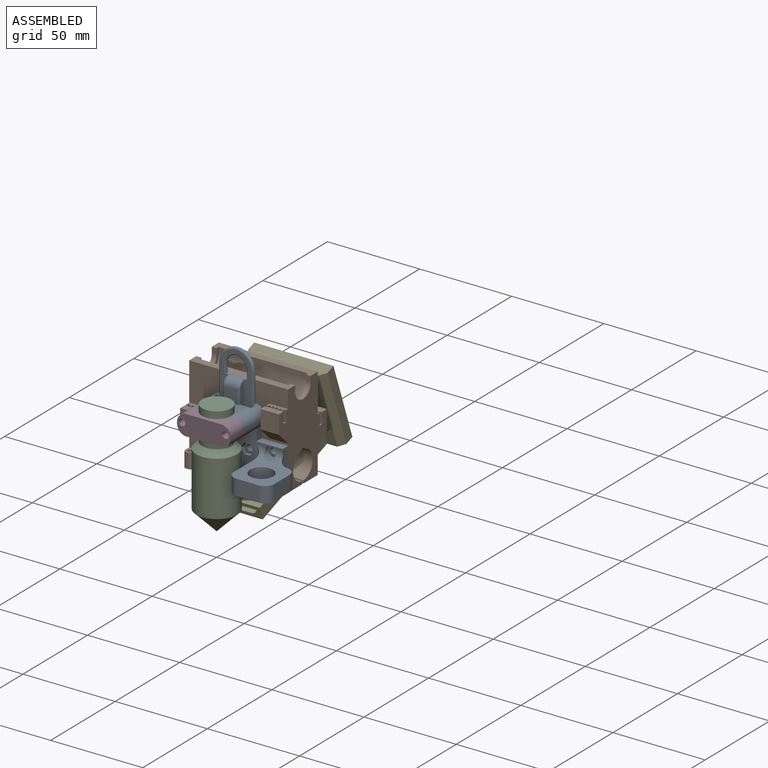
[diagram: assembled view]
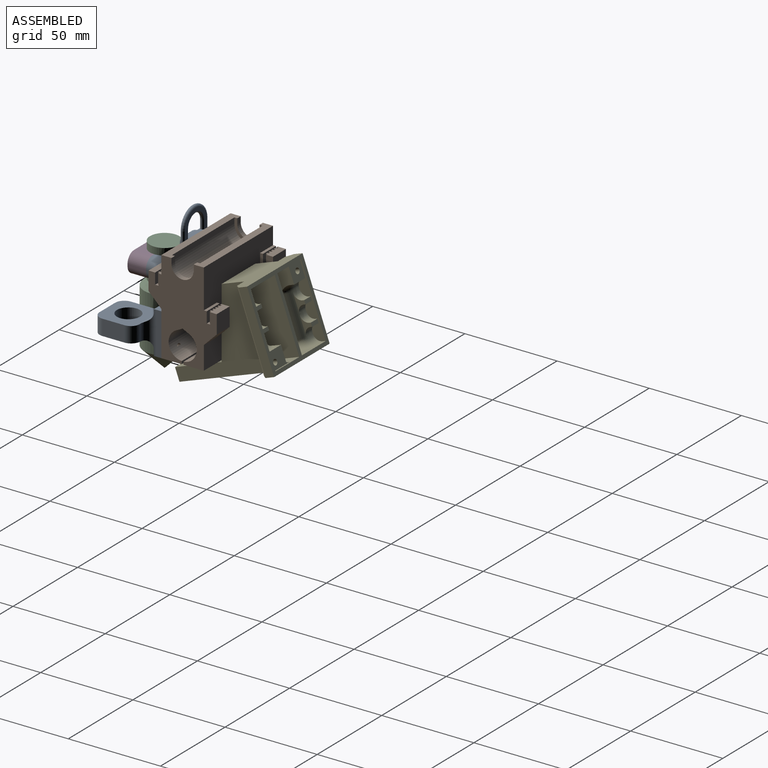
[diagram: assembled view, second angle]
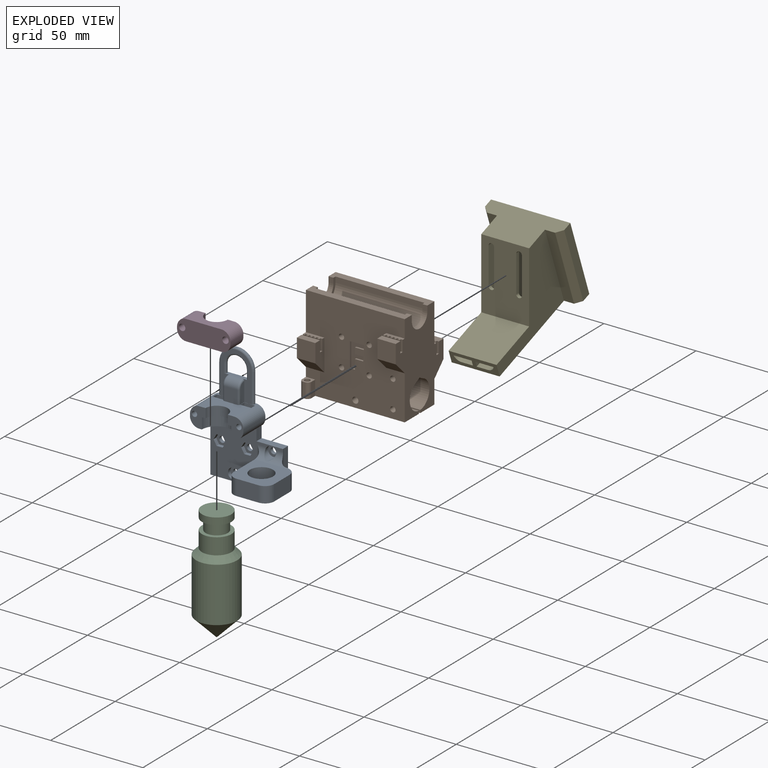
[diagram: exploded view]
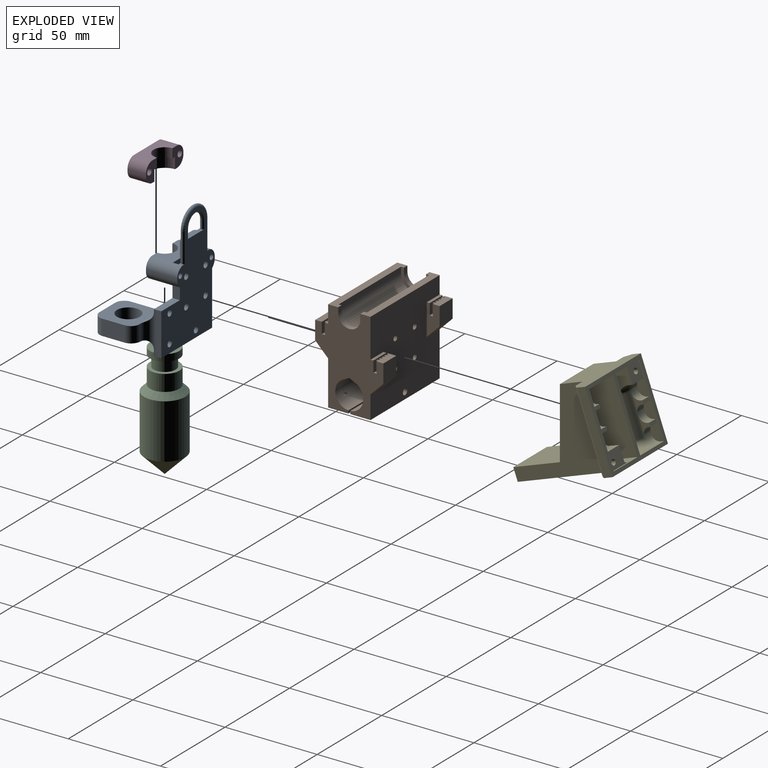
[diagram: exploded view, second angle]
ASSEMBLY  parts=5 mates=4
PART A: 114 faces, bbox 51.3x65.5x30 mm
  f0: plane 19x15.9mm, normal (0,1,0), area 162.2mm2, adj f3,f4,f9,f10,f13,f70,f72,f74
  f1: plane 1.71x0.13mm, normal (0,0,-1), area 0.1mm2, adj f17,f79
  f2: plane 1.71x0.13mm, normal (0,0,-1), area 0.1mm2, adj f20,f70
  f3: cylinder r=5mm len=17mm, axis (0,0,-1), area 131.1mm2, adj f0,f12,f13,f23,f78,f79,f80,f91
  f4: cylinder r=5mm len=17mm, axis (0,0,-1), area 131.1mm2, adj f0,f9,f12,f24,f72,f73,f74,f89
  f5: plane 39.4x29.24mm, normal (0,0,1), area 684.8mm2, adj f6,f11,f14,f27,f28,f30,f31,f39
  f6: plane 29.24x4mm, normal (-1,0,0), area 117mm2, adj f5,f12,f28,f30
  f7: cylinder r=1.68mm len=3.35mm, axis (0,0,1), area 21mm2, adj f12,f21
  f8: cylinder r=1.68mm len=3.35mm, axis (0,0,1), area 21mm2, adj f12,f18
  f9: plane 11x8.5mm, normal (0,0,1), area 64.2mm2, adj f0,f4,f10,f14,f15,f16,f24,f26
  f10: cylinder r=6mm len=12mm, axis (0,1,0), area 94.2mm2, adj f0,f9,f13,f16
  f11: plane 6.24x4mm, normal (1,0,0), area 25mm2, adj f5,f12,f27,f31
  f12: plane 63.74x41.3mm, normal (0,0,-1), area 1518.2mm2, adj f3,f4,f6,f7,f8,f11,f23,f24
  f13: plane 11x8.5mm, normal (0,0,1), area 64.2mm2, adj f0,f3,f10,f14,f15,f16,f23,f25
  f14: plane 19x13mm, normal (0,-1,0), area 146.5mm2, adj f5,f9,f13,f15,f27,f28
  f15: cylinder r=8mm len=16mm, axis (0,-1,0), area 150.8mm2, adj f9,f13,f14,f16
  f16: plane 16x8mm, normal (0,-1,0), area 44mm2, adj f9,f10,f13,f15
  f17: cylinder r=3mm len=6mm, axis (0,0,1), area 10mm2, adj f1,f18,f19,f76,f77,f78,f79
  f18: plane 6x6mm, normal (0,0,1), area 19.5mm2, adj f8,f17
  f19: plane 1.71x0.13mm, normal (0,0,-1), area 0.1mm2, adj f17,f76
  f20: cylinder r=3mm len=6mm, axis (0,0,1), area 10mm2, adj f2,f21,f22,f70,f71,f72,f73
  f21: plane 6x6mm, normal (0,0,1), area 19.5mm2, adj f7,f20
  f22: plane 1.71x0.13mm, normal (0,0,-1), area 0.1mm2, adj f20,f73
  f23: plane 17x1mm, normal (1,0,0), area 17mm2, adj f3,f12,f13,f27
  f24: plane 17x1mm, normal (-1,0,0), area 17mm2, adj f4,f9,f12,f28
  f25: cylinder r=1.45mm len=17mm, axis (0,0,1), area 154.9mm2, adj f12,f13
  f26: cylinder r=1.45mm len=17mm, axis (0,0,1), area 154.9mm2, adj f9,f12
  f27: cylinder r=5mm len=17mm, axis (0,0,-1), area 120.6mm2, adj f5,f11,f12,f13,f14,f23
  f28: cylinder r=5mm len=17mm, axis (0,0,1), area 120.6mm2, adj f5,f6,f9,f12,f14,f24
  f29: plane 23x3mm, normal (1,0,0), area 69mm2, adj f12,f30,f31,f39
  f30: plane 39.4x4mm, normal (0,-1,0), area 157.2mm2, adj f5,f6,f12,f29,f39
  f31: plane 14.4x4mm, normal (0,1,0), area 57.2mm2, adj f5,f11,f12,f29,f39
  f32: plane 19x10.5mm, normal (-1,0,0), area 163.4mm2, adj f35,f36,f37,f67,f68,f69
  f33: plane 12x8.5mm, normal (0,0,1), area 102mm2, adj f35,f36,f37,f38
  f34: plane 12x8.5mm, normal (1,0,0), area 102mm2, adj f35,f36,f38,f40
  f35: plane 22x21mm, normal (0,-1,0), area 326.1mm2, adj f32,f33,f34,f37,f38,f40,f41,f68
  f36: plane 22x21mm, normal (0,1,0), area 326.1mm2, adj f32,f33,f34,f37,f38,f40,f41,f67
  f37: cylinder r=5mm len=8.5mm, axis (0,1,0), area 66.8mm2, adj f32,f33,f35,f36
  f38: cylinder r=5mm len=8.5mm, axis (0,-1,0), area 66.8mm2, adj f33,f34,f35,f36
  f39: cylinder r=5mm len=23mm, axis (0,1,0), area 94mm2, adj f5,f29,f30,f31,f40,f67,f68
  f40: cylinder r=5mm len=8.7mm, axis (0,1,0), area 67.1mm2, adj f34,f35,f36,f39,f67,f68
  f41: cylinder r=6.25mm len=12.5mm, axis (0,1,0), area 333.8mm2, adj f35,f36
  f42: cylinder r=3mm len=6mm, axis (0,0,1), area 57.4mm2, adj f5,f43,f67
  f43: plane 6x6mm, normal (0,0,1), area 19.5mm2, adj f42,f66
  f44: plane 2.86x2mm, normal (-0.87,0.5,0), area 6.6mm2, adj f5,f45,f49,f50
  f45: plane 2.86x2mm, normal (-0.87,-0.5,0), area 6.6mm2, adj f5,f44,f46,f50
  f46: plane 3.3x2mm, normal (0,-1,0), area 6.6mm2, adj f5,f45,f47,f50
  f47: plane 2.86x2mm, normal (0.87,-0.5,0), area 6.6mm2, adj f5,f46,f48,f50
  f48: plane 2.86x2mm, normal (0.87,0.5,0), area 6.6mm2, adj f5,f47,f49,f50
  f49: plane 3.3x2mm, normal (0,1,0), area 6.6mm2, adj f5,f44,f48,f50
  f50: plane 6.6x5.72mm, normal (0,0,1), area 19.5mm2, adj f44,f45,f46,f47,f48,f49,f65
  f51: cylinder r=3mm len=6mm, axis (0,0,1), area 37.7mm2, adj f5,f52
  f52: plane 6x6mm, normal (0,0,1), area 19.5mm2, adj f51,f64
  f53: plane 2.86x2mm, normal (-0.87,-0.5,0), area 6.6mm2, adj f5,f54,f58,f59
  f54: plane 3.3x2mm, normal (0,-1,0), area 6.6mm2, adj f5,f53,f55,f59
  f55: plane 2.86x2mm, normal (0.87,-0.5,0), area 6.6mm2, adj f5,f54,f56,f59
  f56: plane 2.86x2mm, normal (0.87,0.5,0), area 6.6mm2, adj f5,f55,f57,f59
  f57: plane 3.3x2mm, normal (0,1,0), area 6.6mm2, adj f5,f56,f58,f59
  f58: plane 2.86x2mm, normal (-0.87,0.5,0), area 6.6mm2, adj f5,f53,f57,f59
  f59: plane 6.6x5.72mm, normal (0,0,1), area 19.5mm2, adj f53,f54,f55,f56,f57,f58,f63
  f60: cylinder r=3mm len=6mm, axis (0,0,1), area 54.6mm2, adj f5,f61,f68
  f61: plane 6x6mm, normal (0,0,1), area 19.5mm2, adj f60,f62
  f62: cylinder r=1.68mm len=3.35mm, axis (0,0,1), area 21mm2, adj f12,f61
  f63: cylinder r=1.68mm len=3.35mm, axis (0,0,1), area 21mm2, adj f12,f59
  f64: cylinder r=1.68mm len=3.35mm, axis (0,0,1), area 21mm2, adj f12,f52
  f65: cylinder r=1.68mm len=3.35mm, axis (0,0,1), area 21mm2, adj f12,f50
  f66: cylinder r=1.68mm len=3.35mm, axis (0,0,1), area 21mm2, adj f12,f43
  f67: cylinder r=5mm len=22mm, axis (-1,0,0), area 80.7mm2, adj f5,f32,f36,f39,f40,f42,f69
  f68: cylinder r=5mm len=22mm, axis (1,0,0), area 83mm2, adj f5,f32,f35,f39,f40,f60,f69
  f69: cylinder r=2mm len=18.5mm, axis (0,-1,0), area 44.1mm2, adj f5,f32,f67,f68
  f70: plane 10x3mm, normal (-1,0,0), area 26.9mm2, adj f0,f2,f20,f71,f72,f74,f75
  f71: plane 5.75x2.7mm, normal (0,0,1), area 6.5mm2, adj f20,f70,f73,f75
  f72: plane 5.75x5.58mm, normal (0,0,1), area 23mm2, adj f0,f4,f20,f70,f73
  f73: plane 9.92x3mm, normal (1,0,0), area 26.7mm2, adj f4,f20,f22,f71,f72,f74,f75
  f74: plane 10x5.75mm, normal (0,0,-1), area 48.7mm2, adj f0,f4,f70,f73,f75,f84
  f75: plane 5.75x3mm, normal (0,1,0), area 17.2mm2, adj f70,f71,f73,f74
  f76: plane 10x3mm, normal (1,0,0), area 26.9mm2, adj f0,f17,f19,f77,f78,f80,f81
  f77: plane 5.75x2.7mm, normal (0,0,1), area 6.5mm2, adj f17,f76,f79,f81
  f78: plane 5.75x5.58mm, normal (0,0,1), area 23mm2, adj f0,f3,f17,f76,f79
  f79: plane 9.92x3mm, normal (-1,0,0), area 26.7mm2, adj f1,f3,f17,f77,f78,f80,f81
  f80: plane 10x5.75mm, normal (0,0,-1), area 48.7mm2, adj f0,f3,f76,f79,f81,f82
  f81: plane 5.75x3mm, normal (0,1,0), area 17.2mm2, adj f76,f77,f79,f80
  f82: cylinder r=1.68mm len=3.8mm, axis (0,0,-1), area 40mm2, adj f80,f83
  f83: plane 3.35x3.35mm, normal (0,0,-1), area 8.8mm2, adj f82
  f84: cylinder r=1.68mm len=3.8mm, axis (0,0,-1), area 40mm2, adj f74,f85
  f85: plane 3.35x3.35mm, normal (0,0,-1), area 8.8mm2, adj f84
  f86: cylinder r=5.5mm len=11mm, axis (0,0,-1), area 1.7mm2, adj f87,f92,f106,f112
  f87: plane 4.64x0.1mm, normal (1,0,0), area 0.5mm2, adj f86,f88,f105,f111
  f88: plane 13x2.1mm, normal (0,1,0), area 24mm2, adj f12,f87,f92,f93,f97,f105,f107,f111
  f89: plane 16x0.1mm, normal (-1,0,0), area 1.6mm2, adj f4,f90,f102,f108
  f90: cylinder r=9.5mm len=19mm, axis (0,0,-1), area 3mm2, adj f89,f91,f103,f109
  f91: plane 16x0.1mm, normal (1,0,0), area 1.6mm2, adj f3,f90,f104,f110
  f92: plane 4.64x0.1mm, normal (-1,0,0), area 0.5mm2, adj f86,f88,f107,f113
  f93: plane 24.5x17mm, normal (0,0,1), area 157mm2, adj f0,f88,f94,f95,f98,f100,f108,f109
  f94: plane 10.36x3mm, normal (1,0,0), area 29.2mm2, adj f0,f93,f98,f99
  f95: plane 10.36x3mm, normal (-1,0,0), area 29.2mm2, adj f0,f93,f100,f101
  f96: plane 7.36x7mm, normal (0,0,1), area 51.5mm2, adj f0,f97,f99,f101
  f97: cylinder r=4mm len=7mm, axis (1,0,0), area 44mm2, adj f88,f96,f98,f100
  f98: torus R=3mm, axis (-1,0,0), area 9mm2, adj f93,f94,f97,f99
  f99: cylinder r=1mm len=7.36mm, axis (0,-1,0), area 11.6mm2, adj f0,f94,f96,f98
  f100: torus R=3mm, axis (-1,0,0), area 9mm2, adj f93,f95,f97,f101
  f101: cylinder r=1mm len=7.36mm, axis (0,1,0), area 11.6mm2, adj f0,f95,f96,f100
  f102: cylinder r=1mm len=16.1mm, axis (0,-1,0), area 25.2mm2, adj f4,f12,f89,f103
  f103: torus R=8.5mm, axis (0,0,1), area 45.1mm2, adj f12,f90,f102,f104
  f104: cylinder r=1mm len=16.1mm, axis (0,1,0), area 25.2mm2, adj f3,f12,f91,f103
  f105: cylinder r=1mm len=4.64mm, axis (0,1,0), area 7.3mm2, adj f12,f87,f88,f106
  f106: torus R=6.5mm, axis (0,0,1), area 28.9mm2, adj f12,f86,f105,f107
  f107: cylinder r=1mm len=4.64mm, axis (0,-1,0), area 7.3mm2, adj f12,f88,f92,f106
  f108: cylinder r=1mm len=16mm, axis (0,-1,0), area 25.1mm2, adj f0,f89,f93,f109
  f109: torus R=8.5mm, axis (0,0,-1), area 45.1mm2, adj f90,f93,f108,f110
  f110: cylinder r=1mm len=16mm, axis (0,1,0), area 25.1mm2, adj f0,f91,f93,f109
  f111: cylinder r=1mm len=4.64mm, axis (0,1,0), area 7.3mm2, adj f87,f88,f93,f112
  f112: torus R=6.5mm, axis (0,0,-1), area 28.9mm2, adj f86,f93,f111,f113
  f113: cylinder r=1mm len=4.64mm, axis (0,-1,0), area 7.3mm2, adj f88,f92,f93,f112
PART B: 156 faces, bbox 53.6x37x50.6 mm
  f0: plane 53.6x50.6mm, normal (0,-1,0), area 2226.4mm2, adj f1,f6,f7,f8,f16,f18,f19,f32
  f1: plane 50.6x37mm, normal (-1,0,0), area 1088.7mm2, adj f0,f2,f5,f8,f12,f17,f18,f19
  f2: plane 10x4.5mm, normal (0,0,1), area 40.5mm2, adj f1,f83,f84,f106,f107,f108,f109,f110
  f3: plane 17x7mm, normal (-1,0,0), area 89.1mm2, adj f4,f5,f80,f81,f97,f98,f105,f127
  f4: plane 10x4.5mm, normal (0,0,1), area 40.5mm2, adj f3,f16,f81,f85,f86,f87,f88,f89
  f5: plane 53.6x50.6mm, normal (0,1,0), area 2336.9mm2, adj f1,f3,f12,f16,f17,f80,f82,f83
  f6: plane 10x2.5mm, normal (0,0,1), area 20.5mm2, adj f0,f7,f16,f59,f60,f61,f62,f63
  f7: plane 17x7mm, normal (-1,0,0), area 89.1mm2, adj f0,f6,f34,f35,f36,f71,f72,f79
  f8: plane 10x2.5mm, normal (0,0,1), area 20.5mm2, adj f0,f1,f32,f38,f39,f40,f41,f42
  f9: plane 48.3x3mm, normal (0,-1,0), area 144.9mm2, adj f10,f12,f26,f30
  f10: cylinder r=7.6mm len=48.3mm, axis (-1,0,0), area 1153.2mm2, adj f9,f11,f26,f30
  f11: plane 48.3x3mm, normal (0,1,0), area 144.9mm2, adj f10,f19,f26,f30
  f12: plane 53.6x5.5mm, normal (0,0,1), area 217.5mm2, adj f1,f5,f9,f15,f16,f26,f27,f30
  f13: cylinder r=6mm len=12mm, axis (-1,0,0), area 50mm2, adj f14,f15,f16,f26
  f14: plane 3x2.65mm, normal (0,1,0), area 7.9mm2, adj f13,f16,f19,f26
  f15: plane 3x2.65mm, normal (0,-1,0), area 7.9mm2, adj f12,f13,f16,f26
  f16: plane 50.6x37mm, normal (1,0,0), area 1053.9mm2, adj f0,f4,f5,f6,f12,f13,f14,f15
  f17: plane 53.6x11mm, normal (0,0,-1), area 589.6mm2, adj f1,f5,f16,f24
  f18: plane 53.6x16mm, normal (0,0,-1), area 606.3mm2, adj f0,f1,f16,f25,f151,f152,f153,f154
  f19: plane 53.6x5.5mm, normal (0,0,1), area 217.5mm2, adj f0,f1,f11,f14,f16,f26,f28,f30
  f20: plane 53.6x2.44mm, normal (0,-0.46,-0.89), area 136mm2, adj f1,f16,f21,f23,f130,f131
  f21: cylinder r=7.6mm len=53.6mm, axis (-1,0,0), area 1106.4mm2, adj f1,f16,f20,f24,f133
  f22: cylinder r=7.6mm len=53.6mm, axis (-1,0,0), area 1104.3mm2, adj f1,f16,f23,f25,f132,f135,f136
  f23: plane 53.6x2.44mm, normal (0,0.46,-0.89), area 136mm2, adj f1,f16,f20,f22,f130,f131
  f24: plane 53.6x1.52mm, normal (0,-1,0), area 81.3mm2, adj f1,f16,f17,f21
  f25: plane 53.6x1.52mm, normal (0,1,0), area 81.3mm2, adj f1,f16,f18,f22
  f26: plane 15.2x10.6mm, normal (-1,0,0), area 43.8mm2, adj f9,f10,f11,f12,f13,f14,f15,f19
  f27: plane 3x2.65mm, normal (0,-1,0), area 7.9mm2, adj f1,f12,f29,f30
  f28: plane 3x2.65mm, normal (0,1,0), area 7.9mm2, adj f1,f19,f29,f30
  f29: cylinder r=6mm len=12mm, axis (-1,0,0), area 50mm2, adj f1,f27,f28,f30
  f30: plane 15.2x10.6mm, normal (1,0,0), area 43.8mm2, adj f9,f10,f11,f12,f19,f27,f28,f29
  f31: plane 10x3.6mm, normal (0,0,1), area 36mm2, adj f1,f32,f33,f51
  f32: plane 17x7mm, normal (1,0,0), area 83.7mm2, adj f0,f8,f31,f33,f37,f51,f52,f58
  f33: plane 10x10mm, normal (0,-1,0), area 100mm2, adj f1,f31,f32,f37
  f34: plane 10x3.6mm, normal (0,0,1), area 36mm2, adj f7,f16,f35,f72
  f35: plane 10x10mm, normal (0,-1,0), area 100mm2, adj f7,f16,f34,f36
  f36: plane 10x7mm, normal (0,-0.71,-0.71), area 99mm2, adj f0,f7,f16,f35
  f37: plane 10x7mm, normal (0,-0.71,-0.71), area 99mm2, adj f0,f1,f32,f33
  f38: plane 6x1mm, normal (0,-1,0), area 6mm2, adj f8,f39,f57,f58
  f39: plane 6x0.9mm, normal (-1,0,0), area 5.4mm2, adj f8,f38,f40,f58
  f40: plane 6x1mm, normal (0,-1,0), area 6mm2, adj f8,f39,f41,f58
  f41: plane 6x0.9mm, normal (1,0,0), area 5.4mm2, adj f8,f40,f42,f58
  f42: plane 6x1mm, normal (0,-1,0), area 6mm2, adj f8,f41,f43,f58
  f43: plane 6x0.9mm, normal (-1,0,0), area 5.4mm2, adj f8,f42,f44,f58
  f44: plane 6x1mm, normal (0,-1,0), area 6mm2, adj f8,f43,f45,f58
  f45: plane 6x0.9mm, normal (1,0,0), area 5.4mm2, adj f8,f44,f46,f58
  f46: plane 6x1mm, normal (0,-1,0), area 6mm2, adj f8,f45,f47,f58
  f47: plane 6x0.9mm, normal (-1,0,0), area 5.4mm2, adj f8,f46,f48,f58
  f48: plane 6x1mm, normal (0,-1,0), area 6mm2, adj f8,f47,f49,f58
  f49: plane 6x0.9mm, normal (1,0,0), area 5.4mm2, adj f8,f48,f50,f58
  f50: plane 6x1mm, normal (0,-1,0), area 6mm2, adj f1,f8,f49,f58
  f51: plane 10x6mm, normal (0,1,0), area 60mm2, adj f1,f31,f32,f58
  f52: plane 6x1mm, normal (0,-1,0), area 6mm2, adj f8,f32,f53,f58
  f53: plane 6x0.9mm, normal (1,0,0), area 5.4mm2, adj f8,f52,f54,f58
  f54: plane 6x1mm, normal (0,-1,0), area 6mm2, adj f8,f53,f55,f58
  f55: plane 6x0.9mm, normal (-1,0,0), area 5.4mm2, adj f8,f54,f56,f58
  f56: plane 6x1mm, normal (0,-1,0), area 6mm2, adj f8,f55,f57,f58
  f57: plane 6x0.9mm, normal (1,0,0), area 5.4mm2, adj f8,f38,f56,f58
  f58: plane 10x1.8mm, normal (0,0,1), area 13.5mm2, adj f1,f32,f38,f39,f40,f41,f42,f43
  f59: plane 6x1mm, normal (0,-1,0), area 6mm2, adj f6,f60,f78,f79
  f60: plane 6x0.9mm, normal (-1,0,0), area 5.4mm2, adj f6,f59,f61,f79
  f61: plane 6x1mm, normal (0,-1,0), area 6mm2, adj f6,f60,f62,f79
  f62: plane 6x0.9mm, normal (1,0,0), area 5.4mm2, adj f6,f61,f63,f79
  f63: plane 6x1mm, normal (0,-1,0), area 6mm2, adj f6,f62,f64,f79
  f64: plane 6x0.9mm, normal (-1,0,0), area 5.4mm2, adj f6,f63,f65,f79
  f65: plane 6x1mm, normal (0,-1,0), area 6mm2, adj f6,f64,f66,f79
  f66: plane 6x0.9mm, normal (1,0,0), area 5.4mm2, adj f6,f65,f67,f79
  f67: plane 6x1mm, normal (0,-1,0), area 6mm2, adj f6,f66,f68,f79
  f68: plane 6x0.9mm, normal (-1,0,0), area 5.4mm2, adj f6,f67,f69,f79
  f69: plane 6x1mm, normal (0,-1,0), area 6mm2, adj f6,f68,f70,f79
  f70: plane 6x0.9mm, normal (1,0,0), area 5.4mm2, adj f6,f69,f71,f79
  f71: plane 6x1mm, normal (0,-1,0), area 6mm2, adj f6,f7,f70,f79
  f72: plane 10x6mm, normal (0,1,0), area 60mm2, adj f7,f16,f34,f79
  f73: plane 6x1mm, normal (0,-1,0), area 6mm2, adj f6,f16,f74,f79
  f74: plane 6x0.9mm, normal (1,0,0), area 5.4mm2, adj f6,f73,f75,f79
  f75: plane 6x1mm, normal (0,-1,0), area 6mm2, adj f6,f74,f76,f79
  f76: plane 6x0.9mm, normal (-1,0,0), area 5.4mm2, adj f6,f75,f77,f79
  f77: plane 6x1mm, normal (0,-1,0), area 6mm2, adj f6,f76,f78,f79
  f78: plane 6x0.9mm, normal (1,0,0), area 5.4mm2, adj f6,f59,f77,f79
  f79: plane 10x1.8mm, normal (0,0,1), area 13.5mm2, adj f7,f16,f59,f60,f61,f62,f63,f64
  f80: plane 10x1.6mm, normal (0,0,1), area 16mm2, adj f3,f5,f16,f98
  f81: plane 10x10mm, normal (0,1,0), area 100mm2, adj f3,f4,f16,f127
  f82: plane 10x1.6mm, normal (0,0,1), area 16mm2, adj f1,f5,f83,f119
  f83: plane 17x7mm, normal (1,0,0), area 83.7mm2, adj f2,f5,f82,f84,f119,f120,f126,f128
  f84: plane 10x10mm, normal (0,1,0), area 100mm2, adj f1,f2,f83,f128
  f85: plane 6x1mm, normal (0,-1,0), area 6mm2, adj f4,f86,f104,f105
  f86: plane 6x0.9mm, normal (-1,0,0), area 5.4mm2, adj f4,f85,f87,f105
  f87: plane 6x1mm, normal (0,-1,0), area 6mm2, adj f4,f86,f88,f105
  f88: plane 6x0.9mm, normal (1,0,0), area 5.4mm2, adj f4,f87,f89,f105
  f89: plane 6x1mm, normal (0,-1,0), area 6mm2, adj f4,f88,f90,f105
  f90: plane 6x0.9mm, normal (-1,0,0), area 5.4mm2, adj f4,f89,f91,f105
  f91: plane 6x1mm, normal (0,-1,0), area 6mm2, adj f4,f90,f92,f105
  f92: plane 6x0.9mm, normal (1,0,0), area 5.4mm2, adj f4,f91,f93,f105
  f93: plane 6x1mm, normal (0,-1,0), area 6mm2, adj f4,f92,f94,f105
  f94: plane 6x0.9mm, normal (-1,0,0), area 5.4mm2, adj f4,f93,f95,f105
  f95: plane 6x1mm, normal (0,-1,0), area 6mm2, adj f4,f94,f96,f105
  f96: plane 6x0.9mm, normal (1,0,0), area 5.4mm2, adj f4,f95,f97,f105
  f97: plane 6x1mm, normal (0,-1,0), area 6mm2, adj f3,f4,f96,f105
  f98: plane 10x6mm, normal (0,1,0), area 60mm2, adj f3,f16,f80,f105
  f99: plane 6x1mm, normal (0,-1,0), area 6mm2, adj f4,f16,f100,f105
  f100: plane 6x0.9mm, normal (1,0,0), area 5.4mm2, adj f4,f99,f101,f105
  f101: plane 6x1mm, normal (0,-1,0), area 6mm2, adj f4,f100,f102,f105
  f102: plane 6x0.9mm, normal (-1,0,0), area 5.4mm2, adj f4,f101,f103,f105
  f103: plane 6x1mm, normal (0,-1,0), area 6mm2, adj f4,f102,f104,f105
  f104: plane 6x0.9mm, normal (1,0,0), area 5.4mm2, adj f4,f85,f103,f105
  f105: plane 10x1.8mm, normal (0,0,1), area 13.5mm2, adj f3,f16,f85,f86,f87,f88,f89,f90
  f106: plane 6x1mm, normal (0,-1,0), area 6mm2, adj f2,f107,f125,f126
  f107: plane 6x0.9mm, normal (-1,0,0), area 5.4mm2, adj f2,f106,f108,f126
  f108: plane 6x1mm, normal (0,-1,0), area 6mm2, adj f2,f107,f109,f126
  f109: plane 6x0.9mm, normal (1,0,0), area 5.4mm2, adj f2,f108,f110,f126
  f110: plane 6x1mm, normal (0,-1,0), area 6mm2, adj f2,f109,f111,f126
  f111: plane 6x0.9mm, normal (-1,0,0), area 5.4mm2, adj f2,f110,f112,f126
  f112: plane 6x1mm, normal (0,-1,0), area 6mm2, adj f2,f111,f113,f126
  f113: plane 6x0.9mm, normal (1,0,0), area 5.4mm2, adj f2,f112,f114,f126
  f114: plane 6x1mm, normal (0,-1,0), area 6mm2, adj f2,f113,f115,f126
  f115: plane 6x0.9mm, normal (-1,0,0), area 5.4mm2, adj f2,f114,f116,f126
  f116: plane 6x1mm, normal (0,-1,0), area 6mm2, adj f2,f115,f117,f126
  f117: plane 6x0.9mm, normal (1,0,0), area 5.4mm2, adj f2,f116,f118,f126
  f118: plane 6x1mm, normal (0,-1,0), area 6mm2, adj f1,f2,f117,f126
  f119: plane 10x6mm, normal (0,1,0), area 60mm2, adj f1,f82,f83,f126
  f120: plane 6x1mm, normal (0,-1,0), area 6mm2, adj f2,f83,f121,f126
  f121: plane 6x0.9mm, normal (1,0,0), area 5.4mm2, adj f2,f120,f122,f126
  f122: plane 6x1mm, normal (0,-1,0), area 6mm2, adj f2,f121,f123,f126
  f123: plane 6x0.9mm, normal (-1,0,0), area 5.4mm2, adj f2,f122,f124,f126
  f124: plane 6x1mm, normal (0,-1,0), area 6mm2, adj f2,f123,f125,f126
  f125: plane 6x0.9mm, normal (1,0,0), area 5.4mm2, adj f2,f106,f124,f126
  f126: plane 10x1.8mm, normal (0,0,1), area 13.5mm2, adj f1,f83,f106,f107,f108,f109,f110,f111
  f127: plane 10x7mm, normal (0,0.71,-0.71), area 99mm2, adj f3,f5,f16,f81
  f128: plane 10x7mm, normal (0,0.71,-0.71), area 99mm2, adj f1,f5,f83,f84
  f129: cylinder r=1.45mm len=23mm, axis (0,-1,0), area 209.5mm2, adj f0,f5
  f130: cylinder r=1.45mm len=23mm, axis (0,-1,0), area 197.2mm2, adj f0,f5,f20,f23
  f131: cylinder r=1.45mm len=23mm, axis (0,-1,0), area 197.2mm2, adj f0,f5,f20,f23
  f132: cylinder r=1.68mm len=8.79mm, axis (0,-1,0), area 68.3mm2, adj f0,f22
  f133: cylinder r=1.68mm len=8.79mm, axis (0,-1,0), area 68.3mm2, adj f5,f21
  f134: cylinder r=1.45mm len=23mm, axis (0,-1,0), area 209.5mm2, adj f0,f5
  f135: cylinder r=1.45mm len=5mm, axis (0,-1,0), area 44.4mm2, adj f0,f22,f136
  f136: plane 2.9x1.96mm, normal (0,-1,0), area 4.8mm2, adj f22,f135
  f137: cylinder r=1.45mm len=5mm, axis (0,-1,0), area 45.6mm2, adj f0,f138
  f138: plane 2.9x2.9mm, normal (0,-1,0), area 6.6mm2, adj f137
  f139: plane 2.75x1mm, normal (0,0,1), area 2.7mm2, adj f0,f140,f148,f149
  f140: plane 5.2x1mm, normal (-1,0,0), area 5.2mm2, adj f0,f139,f141,f149
  f141: plane 4.47x1mm, normal (0,0,1), area 4.5mm2, adj f0,f140,f142,f149
  f142: plane 2.28x1mm, normal (-1,0,0), area 2.3mm2, adj f0,f141,f143,f149
  f143: plane 4.47x1mm, normal (0,0,-1), area 4.5mm2, adj f0,f142,f144,f149
  f144: plane 3.39x1mm, normal (-1,0,0), area 3.4mm2, adj f0,f143,f145,f149
  f145: plane 4.8x1mm, normal (0,0,1), area 4.8mm2, adj f0,f144,f146,f149
  f146: plane 2.29x1mm, normal (-1,0,0), area 2.3mm2, adj f0,f145,f147,f149
  f147: plane 7.55x1mm, normal (0,0,-1), area 7.5mm2, adj f0,f146,f148,f149
  f148: plane 13.17x1mm, normal (1,0,0), area 13.2mm2, adj f0,f139,f147,f149
  f149: plane 13.17x7.55mm, normal (0,-1,0), area 57.3mm2, adj f139,f140,f141,f142,f143,f144,f145,f146
  f150: plane 5x5mm, normal (0,0,1), area 16.7mm2, adj f0,f1,f151,f152,f153,f154,f155
  f151: plane 8x3mm, normal (1,0,0), area 24mm2, adj f0,f18,f150,f155
  f152: plane 8x1mm, normal (0,-1,0), area 8mm2, adj f18,f150,f154,f155
  f153: cylinder r=1.45mm len=8mm, axis (0,0,1), area 72.9mm2, adj f18,f150
  f154: cylinder r=2mm len=8mm, axis (0,0,-1), area 25.1mm2, adj f1,f18,f150,f152
  f155: cylinder r=2mm len=8mm, axis (0,0,-1), area 25.1mm2, adj f18,f150,f151,f152
PART C: 10 faces, bbox 22.3x22.3x62.3 mm
  f0: cylinder r=8mm len=16mm, axis (0,0,-1), area 186mm2, adj f1,f2
  f1: plane 16x16mm, normal (0,0,1), area 201.1mm2, adj f0
  f2: plane 16x16mm, normal (0,0,-1), area 88mm2, adj f0,f3
  f3: cylinder r=6mm len=12mm, axis (0,0,1), area 226.2mm2, adj f2,f5
  f4: cylinder r=8mm len=16mm, axis (0,0,1), area 444.8mm2, adj f5,f8
  f5: plane 16x16mm, normal (0,0,1), area 88mm2, adj f3,f4
  f6: cylinder r=11.15mm len=29.6mm, axis (0,0,1), area 2073.7mm2, adj f8,f9
  f7: plane 0.3x0.3mm, normal (0,0,-1), area 0.1mm2, adj f9
  f8: cone r=11.15mm half-angle=45deg, axis (0,0,-1), area 268mm2, adj f4,f6
  f9: cone r=0.15mm half-angle=45deg, axis (0,0,1), area 552.3mm2, adj f6,f7
PART D: 16 faces, bbox 29x11x10 mm
  f0: plane 11x8.5mm, normal (0,0,1), area 61.1mm2, adj f1,f2,f5,f6,f7,f9,f10,f11
  f1: plane 19x10mm, normal (0,-1,0), area 89.5mm2, adj f0,f3,f4,f5,f11,f12
  f2: plane 19x10mm, normal (0,1,0), area 133.5mm2, adj f0,f3,f4,f7,f10,f13
  f3: plane 11x8.5mm, normal (0,0,1), area 61.1mm2, adj f1,f2,f5,f6,f7,f8,f12,f13
  f4: plane 29x11mm, normal (0,0,-1), area 278.3mm2, adj f1,f2,f8,f9,f10,f11,f12,f13
  f5: cylinder r=8mm len=16mm, axis (0,-1,0), area 150.8mm2, adj f0,f1,f3,f6
  f6: plane 16x8mm, normal (0,-1,0), area 44mm2, adj f0,f3,f5,f7
  f7: cylinder r=6mm len=12mm, axis (0,1,0), area 94.2mm2, adj f0,f2,f3,f6
  f8: plane 10x1mm, normal (-1,0,0), area 10mm2, adj f3,f4,f12,f13
  f9: plane 10x1mm, normal (1,0,0), area 10mm2, adj f0,f4,f10,f11
  f10: cylinder r=5mm len=10mm, axis (0,0,-1), area 78.5mm2, adj f0,f2,f4,f9
  f11: cylinder r=5mm len=10mm, axis (0,0,1), area 78.5mm2, adj f0,f1,f4,f9
  f12: cylinder r=5mm len=10mm, axis (0,0,1), area 78.5mm2, adj f1,f3,f4,f8
  f13: cylinder r=5mm len=10mm, axis (0,0,-1), area 78.5mm2, adj f2,f3,f4,f8
  f14: cylinder r=1.75mm len=10mm, axis (0,0,1), area 110mm2, adj f0,f4
  f15: cylinder r=1.75mm len=10mm, axis (0,0,1), area 110mm2, adj f3,f4
PART E: 95 faces, bbox 43.1x43.1x62.9 mm
  f0: plane 32.71x11.91mm, normal (0,0.34,-0.94), area 281.3mm2, adj f2,f4,f29,f46,f47,f48,f49,f93
  f1: plane 61x18.5mm, normal (0,-1,0), area 378.5mm2, adj f8,f14,f15,f35,f92,f94
  f2: plane 19.6x18.5mm, normal (0,1,0), area 204.5mm2, adj f0,f12,f15,f29,f40,f93
  f3: plane 24.8x9.87mm, normal (0,1,0), area 244.8mm2, adj f4,f14,f76,f93
  f4: cylinder r=5mm len=10mm, axis (-1,0,0), area 60.9mm2, adj f0,f3,f29,f76,f93
  f5: plane 3.5x0.67mm, normal (0,0,-1), area 2.3mm2, adj f12,f43,f85,f87
  f6: plane 3.5x0.67mm, normal (0,0,-1), area 2.3mm2, adj f12,f43,f74,f86
  f7: plane 3.5x0.67mm, normal (0,0,-1), area 2.3mm2, adj f8,f42,f89,f91
  f8: plane 39x6mm, normal (1,0,0), area 148.4mm2, adj f1,f7,f9,f13,f15,f26,f32,f35
  f9: plane 3.5x0.67mm, normal (0,0,-1), area 2.3mm2, adj f8,f42,f82,f90
  f10: plane 36x26mm, normal (0,-0.34,0.94), area 862.5mm2, adj f18,f20,f21,f22,f46,f47,f48,f49
  f11: plane 32.71x11.91mm, normal (0,0.34,-0.94), area 277.6mm2, adj f26,f27,f31,f50,f51,f52,f53,f79
  f12: plane 39x6mm, normal (-1,0,0), area 148.4mm2, adj f2,f5,f6,f15,f25,f30,f38,f40
  f13: plane 3.5x0.67mm, normal (0,0,-1), area 2.3mm2, adj f8,f42,f77,f88
  f14: plane 26x7mm, normal (0,0,1), area 128.8mm2, adj f1,f3,f16,f20,f21,f22,f25,f28
  f15: plane 43x43mm, normal (0,0,-1), area 406mm2, adj f1,f2,f8,f12,f16,f17,f18,f19
  f16: plane 61x43mm, normal (0,1,0), area 1713mm2, adj f14,f15,f17,f19,f20,f22,f23,f24
  f17: plane 43x5mm, normal (-1,0,0), area 215mm2, adj f15,f16,f18,f44
  f18: plane 43x21mm, normal (0,-1,0), area 673mm2, adj f10,f15,f17,f19,f20,f22,f23,f24
  f19: plane 43x5mm, normal (1,0,0), area 215mm2, adj f15,f16,f18,f45
  f20: plane 53x43mm, normal (-1,0,0), area 1074.9mm2, adj f10,f14,f16,f18,f21,f24
  f21: plane 26.9x26mm, normal (0,-1,0), area 699.3mm2, adj f10,f14,f20,f22
  f22: plane 53x43mm, normal (1,0,0), area 1074.9mm2, adj f10,f14,f16,f18,f21,f23
  f23: plane 43x5.5mm, normal (0,0,1), area 236.5mm2, adj f16,f18,f22,f45
  f24: plane 43x5.5mm, normal (0,0,1), area 236.5mm2, adj f16,f18,f20,f44
  f25: plane 61x18.5mm, normal (0,-1,0), area 408.4mm2, adj f12,f14,f15,f74,f75,f76,f93
  f26: plane 19.6x18.5mm, normal (0,1,0), area 160mm2, adj f8,f11,f15,f77,f78,f79,f94
  f27: plane 31x27.2mm, normal (1,0,0), area 522.3mm2, adj f11,f31,f36,f42,f79,f83,f92
  f28: plane 24.8x9.87mm, normal (0,1,0), area 244.8mm2, adj f14,f31,f92,f94
  f29: plane 35x32.2mm, normal (-1,0,0), area 625.1mm2, adj f0,f2,f4,f38,f40,f43,f76,f81
  f30: plane 3.5x0.67mm, normal (0,0,-1), area 2.3mm2, adj f12,f43,f80,f84
  f31: cylinder r=5mm len=10mm, axis (-1,0,0), area 60.9mm2, adj f11,f27,f28,f92,f94
  f32: plane 10x3.78mm, normal (0,-1,0), area 15.6mm2, adj f8,f33,f35,f82,f83
  f33: plane 8.25x5.05mm, normal (1,0,0), area 40.6mm2, adj f32,f35,f36,f83,f92
  f34: cylinder r=1.49mm len=5mm, axis (0,0,1), area 46.9mm2, adj f35,f37
  f35: plane 12.5x9mm, normal (0,0,-1), area 83.7mm2, adj f1,f8,f32,f33,f34,f92
  f36: plane 8.68x1.56mm, normal (0,0,1), area 11.2mm2, adj f27,f33,f83,f92
  f37: plane 2.98x2.98mm, normal (0,0,-1), area 7mm2, adj f34
  f38: plane 8.5x2.52mm, normal (0,1,0), area 10.9mm2, adj f12,f29,f40,f80,f81
  f39: cylinder r=1.5mm len=5mm, axis (0,0,1), area 47.1mm2, adj f40,f41
  f40: plane 9x8.5mm, normal (0,0,-1), area 69.4mm2, adj f2,f12,f29,f38,f39
  f41: plane 3x3mm, normal (0,0,-1), area 7.1mm2, adj f39
  f42: cylinder r=5mm len=22mm, axis (0,-1,0), area 172.8mm2, adj f7,f9,f13,f27,f54,f59,f78,f83
  f43: cylinder r=5mm len=22mm, axis (0,1,0), area 172.8mm2, adj f5,f6,f29,f30,f64,f69,f75,f81
  f44: plane 43x3mm, normal (-0.71,0,0.71), area 182.4mm2, adj f16,f17,f18,f24
  f45: plane 43x3mm, normal (0.71,0,0.71), area 182.4mm2, adj f16,f18,f19,f23
  f46: plane 19.39x8.69mm, normal (1,0,0), area 39.8mm2, adj f0,f10,f47,f49
  f47: cylinder r=1.5mm len=3mm, axis (0,-0.34,0.94), area 9.4mm2, adj f0,f10,f46,f48
  f48: plane 19.39x8.69mm, normal (-1,0,0), area 39.8mm2, adj f0,f10,f47,f49
  f49: cylinder r=1.5mm len=3mm, axis (0,-0.34,0.94), area 9.4mm2, adj f0,f10,f46,f48
  f50: plane 19.39x8.69mm, normal (-1,0,0), area 39.8mm2, adj f10,f11,f51,f53
  f51: cylinder r=1.5mm len=3mm, axis (0,-0.34,0.94), area 9.4mm2, adj f10,f11,f50,f52
  f52: plane 19.39x8.69mm, normal (1,0,0), area 39.8mm2, adj f10,f11,f51,f53
  f53: cylinder r=1.5mm len=3mm, axis (0,-0.34,0.94), area 9.4mm2, adj f10,f11,f50,f52
  f54: plane 10x1.5mm, normal (0,0,1), area 15mm2, adj f42,f57,f90,f91
  f55: plane 5x1mm, normal (0,-1,0), area 5mm2, adj f8,f57,f58,f91
  f56: plane 5x1mm, normal (0,1,0), area 5mm2, adj f8,f57,f58,f90
  f57: plane 10x5mm, normal (1,0,0), area 16.9mm2, adj f54,f55,f56,f58,f90,f91
  f58: plane 5x2mm, normal (0,0,-1), area 10mm2, adj f8,f55,f56,f57
  f59: plane 10x1.5mm, normal (0,0,1), area 15mm2, adj f42,f62,f88,f89
  f60: plane 5x1mm, normal (0,-1,0), area 5mm2, adj f8,f62,f63,f88
  f61: plane 5x1mm, normal (0,1,0), area 5mm2, adj f8,f62,f63,f89
  f62: plane 10x5mm, normal (1,0,0), area 16.9mm2, adj f59,f60,f61,f63,f88,f89
  f63: plane 5x2mm, normal (0,0,-1), area 10mm2, adj f8,f60,f61,f62
  f64: plane 10x1.5mm, normal (0,0,1), area 15mm2, adj f43,f66,f86,f87
  f65: plane 5x1mm, normal (0,-1,0), area 5mm2, adj f12,f66,f68,f87
  f66: plane 10x5mm, normal (-1,0,0), area 16.9mm2, adj f64,f65,f67,f68,f86,f87
  f67: plane 5x1mm, normal (0,1,0), area 5mm2, adj f12,f66,f68,f86
  f68: plane 5x2mm, normal (0,0,-1), area 10mm2, adj f12,f65,f66,f67
  f69: plane 10x1.5mm, normal (0,0,1), area 15mm2, adj f43,f71,f84,f85
  f70: plane 5x1mm, normal (0,-1,0), area 5mm2, adj f12,f71,f73,f84
  f71: plane 10x5mm, normal (-1,0,0), area 16.9mm2, adj f69,f70,f72,f73,f84,f85
  f72: plane 5x1mm, normal (0,1,0), area 5mm2, adj f12,f71,f73,f85
  f73: plane 5x2mm, normal (0,0,-1), area 10mm2, adj f12,f70,f71,f72
  f74: cylinder r=4mm len=4mm, axis (-1,0,0), area 22mm2, adj f6,f12,f25,f75
  f75: torus R=9mm, axis (0,1,0), area 63.7mm2, adj f25,f43,f74,f76
  f76: cylinder r=4mm len=50mm, axis (0,0,1), area 287mm2, adj f3,f4,f14,f25,f29,f75
  f77: cylinder r=4mm len=4mm, axis (1,0,0), area 22mm2, adj f8,f13,f26,f78
  f78: torus R=9mm, axis (0,1,0), area 63.7mm2, adj f26,f42,f77,f79
  f79: cylinder r=4mm len=10.06mm, axis (0,0,-1), area 57.4mm2, adj f11,f26,f27,f78
  f80: cylinder r=4mm len=4mm, axis (-1,0,0), area 22mm2, adj f12,f30,f38,f81
  f81: torus R=9mm, axis (0,1,0), area 38.1mm2, adj f29,f38,f43,f80
  f82: cylinder r=4mm len=4mm, axis (1,0,0), area 22mm2, adj f8,f9,f32,f83
  f83: torus R=9mm, axis (0,-1,0), area 41mm2, adj f27,f32,f33,f36,f42,f82
  f84: cylinder r=4mm len=5mm, axis (1,0,0), area 31.4mm2, adj f12,f30,f69,f70,f71
  f85: cylinder r=4mm len=5mm, axis (-1,0,0), area 31.4mm2, adj f5,f12,f69,f71,f72
  f86: cylinder r=4mm len=5mm, axis (-1,0,0), area 31.4mm2, adj f6,f12,f64,f66,f67
  f87: cylinder r=4mm len=5mm, axis (1,0,0), area 31.4mm2, adj f5,f12,f64,f65,f66
  f88: cylinder r=4mm len=5mm, axis (1,0,0), area 31.4mm2, adj f8,f13,f59,f60,f62
  f89: cylinder r=4mm len=5mm, axis (-1,0,0), area 31.4mm2, adj f7,f8,f59,f61,f62
  f90: cylinder r=4mm len=5mm, axis (-1,0,0), area 31.4mm2, adj f8,f9,f54,f56,f57
  f91: cylinder r=4mm len=5mm, axis (1,0,0), area 31.4mm2, adj f7,f8,f54,f55,f57
  f92: cylinder r=4mm len=60mm, axis (0,0,-1), area 332mm2, adj f1,f14,f27,f28,f31,f33,f35,f36
  f93: plane 61x39mm, normal (1,0,0), area 1126.7mm2, adj f0,f2,f3,f4,f14,f15,f25
  f94: plane 61x39mm, normal (-1,0,0), area 1126.7mm2, adj f1,f11,f14,f15,f26,f28,f31
PLACE A rot(axis=(1,0,0),90deg) t=(-11.83,-5.29,14.24)mm
PLACE B t=(-26.13,-5.29,0)mm
PLACE C rot(axis=(0,0,1),180deg) t=(0.67,-22.29,39.24)mm
PLACE D rot(axis=(0,0.71,0.71),180deg) t=(13.17,-32.29,28.24)mm
PLACE E rot(axis=(0,-0.82,0.57),180deg) t=(22.17,37.45,44.48)mm
MATE fastened E.f47 <-> B.f134  axis (0,-1,0) through (-6.83,17.71,32.8)mm
MATE fastened D.f5 <-> C.f0  axis (0,0,1) through (0.67,-22.29,39.24)mm
MATE fastened C.f0 <-> A.f10  axis (0,0,1) through (0.67,-22.29,39.24)mm
MATE fastened A.f7 <-> B.f134  axis (0,-1,0) through (-6.83,-5.29,32.8)mm
